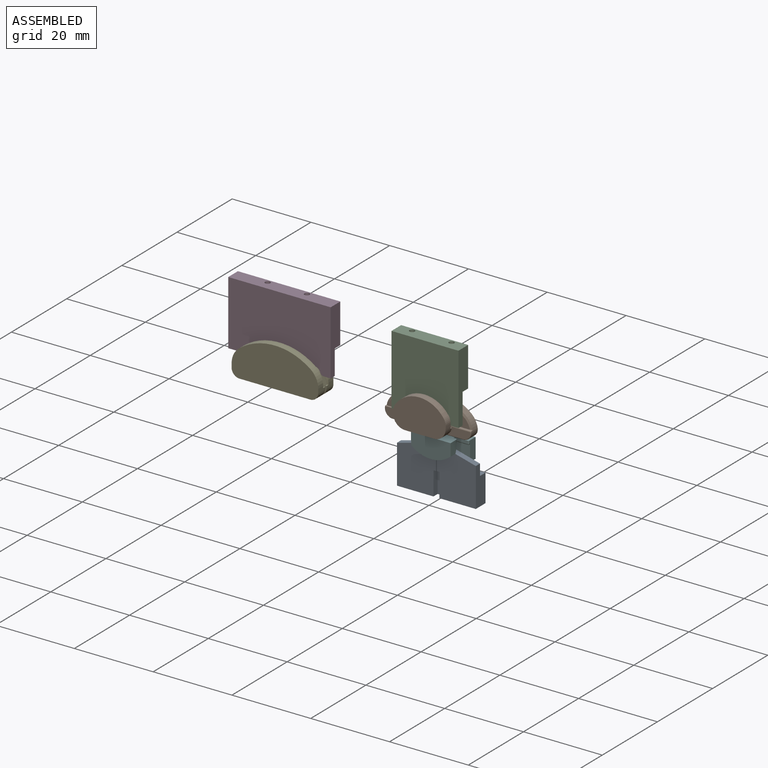
[diagram: assembled view]
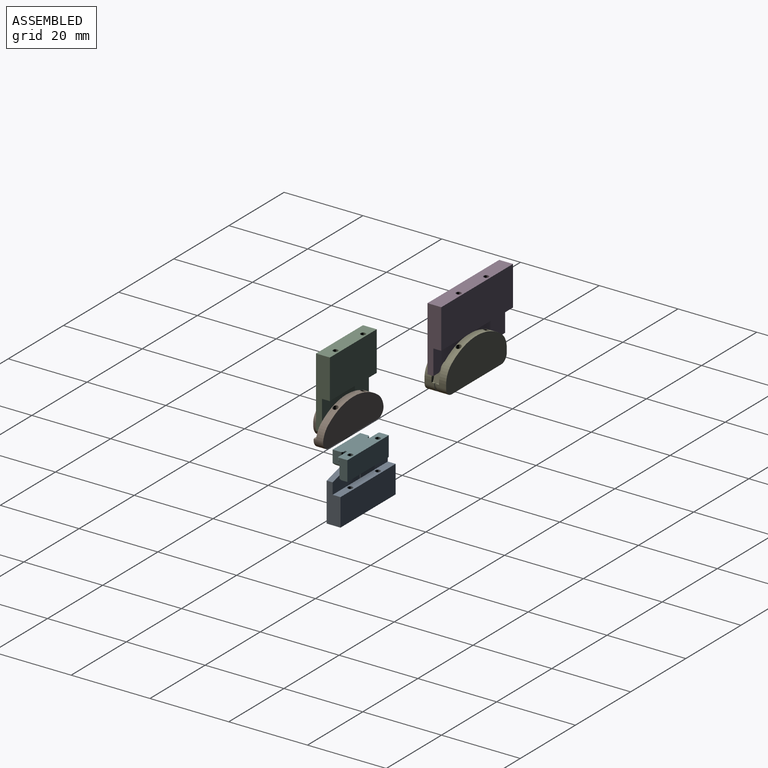
[diagram: assembled view, second angle]
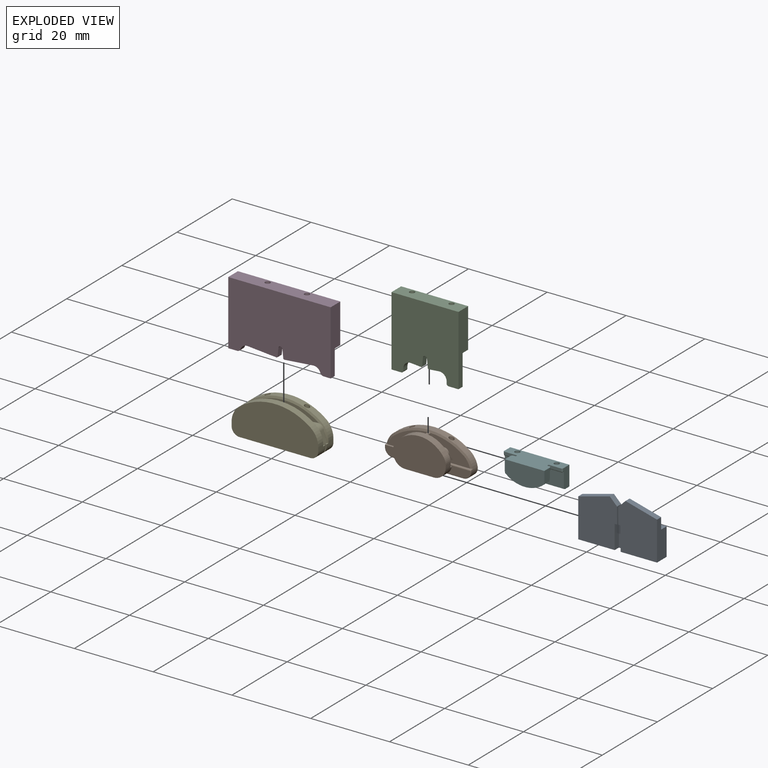
[diagram: exploded view]
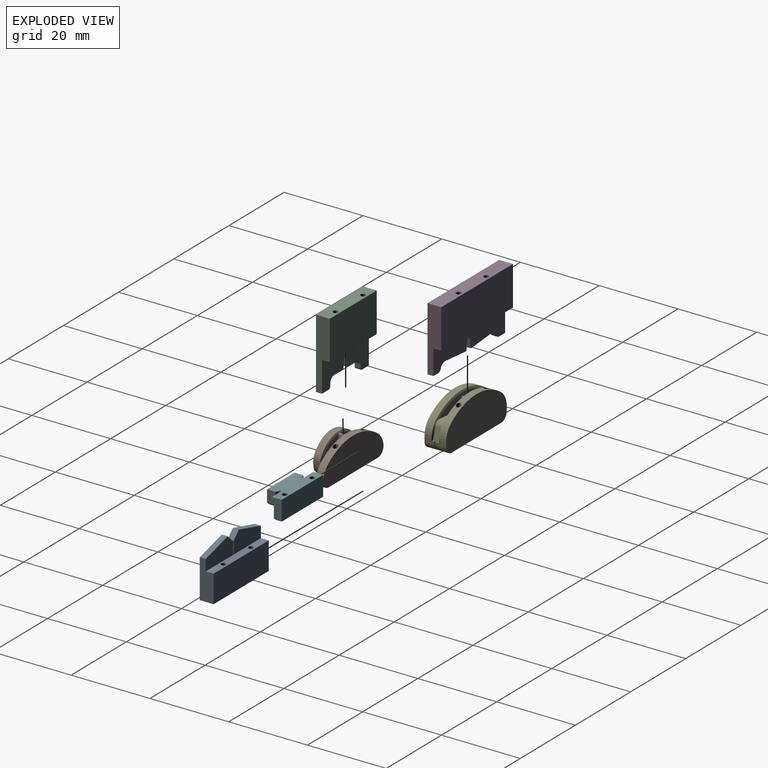
[diagram: exploded view, second angle]
ASSEMBLY  parts=6 mates=2
PART A: 22 faces, bbox 20x12x3.5 mm
  f0: plane 20x7mm, normal (0,0,-1), area 140mm2, adj f3,f4,f6,f19
  f1: plane 7x1.5mm, normal (0,0,1), area 9.3mm2, adj f5,f6,f8,f9,f10,f11,f12,f19
  f2: plane 12x9.85mm, normal (0,0,1), area 104.3mm2, adj f4,f5,f6,f10,f11,f13,f14
  f3: plane 9.86x3.5mm, normal (1,0,0), area 28.8mm2, adj f0,f6,f7,f16,f17,f19
  f4: plane 9.86x3.5mm, normal (-1,0,0), area 28.8mm2, adj f0,f2,f6,f14,f18,f19
  f5: plane 4.15x1.5mm, normal (1,0,0), area 6.2mm2, adj f1,f2,f10,f13,f18
  f6: plane 20x3.5mm, normal (0,-1,0), area 65.1mm2, adj f0,f1,f2,f3,f4,f7,f11,f12
  f7: plane 12x9.85mm, normal (0,0,1), area 104.3mm2, adj f3,f6,f8,f9,f12,f15,f16
  f8: plane 4.15x1.5mm, normal (-1,0,0), area 6.2mm2, adj f1,f7,f9,f15,f17
  f9: plane 1.5x0.6mm, normal (0,-1,0), area 0.9mm2, adj f1,f7,f8,f12
  f10: plane 1.5x0.6mm, normal (0,-1,0), area 0.9mm2, adj f1,f2,f5,f11
  f11: plane 6x1.5mm, normal (1,0,0), area 9mm2, adj f1,f2,f6,f10
  f12: plane 6x1.5mm, normal (-1,0,0), area 9mm2, adj f1,f6,f7,f9
  f13: plane 1.85x1.85mm, normal (0.71,0.71,0), area 3.9mm2, adj f2,f5,f14,f18
  f14: plane 8x2.14mm, normal (-0.26,0.97,0), area 12.4mm2, adj f2,f4,f13,f18
  f15: plane 1.85x1.85mm, normal (-0.71,0.71,0), area 3.9mm2, adj f7,f8,f16,f17
  f16: plane 8x2.14mm, normal (0.26,0.97,0), area 12.4mm2, adj f3,f7,f15,f17
  f17: plane 9.85x5mm, normal (0,0,-1), area 39mm2, adj f3,f8,f15,f16,f19
  f18: plane 9.85x5mm, normal (0,0,-1), area 39mm2, adj f4,f5,f13,f14,f19
  f19: plane 20x2mm, normal (0,1,0), area 37.3mm2, adj f0,f1,f3,f4,f17,f18,f20,f21
  f20: cylinder r=0.65mm len=7mm, axis (0,-1,0), area 28.6mm2, adj f6,f19
  f21: cylinder r=0.65mm len=7mm, axis (0,-1,0), area 28.6mm2, adj f6,f19
PART B: 78 faces, bbox 22.3x5.5x8.8 mm
  f0: plane 3.61x2mm, normal (0,1,0), area 3.2mm2, adj f11,f33,f74,f75
  f1: plane 5.87x5.49mm, normal (0,1,0), area 11mm2, adj f6,f10,f16,f17,f18,f19,f20,f21
  f2: plane 5.87x5.49mm, normal (0,1,0), area 11mm2, adj f11,f14,f15,f16,f22,f23,f24,f32
  f3: plane 13.33x8.5mm, normal (0,-1,0), area 93.8mm2, adj f4,f52,f53,f54,f55,f56,f57,f58
  f4: plane 7.33x2.32mm, normal (0,0,-1), area 17mm2, adj f3,f56,f57,f70,f71,f72,f73,f74
  f5: plane 3.64x2.1mm, normal (0,1,0), area 3.4mm2, adj f10,f66,f69,f70
  f6: plane 1.44x0.41mm, normal (0,0,1), area 0.4mm2, adj f1,f10,f62,f66,f67
  f7: plane 8.02x2.3mm, normal (0,-1,0), area 14.5mm2, adj f10,f27,f42,f43,f44
  f8: plane 10.1x5.5mm, normal (0,-1,0), area 26.3mm2, adj f11,f14,f15,f16,f22,f23,f24,f26
  f9: plane 5.05x0.5mm, normal (0,0,-1), area 2.5mm2, adj f10,f11,f46,f72
  f10: cylinder r=4mm len=4.42mm, axis (0,1,0), area 4.9mm2, adj f1,f5,f6,f7,f9,f12,f21,f27
  f11: cylinder r=4mm len=4.42mm, axis (0,1,0), area 4.9mm2, adj f0,f2,f8,f9,f22,f25,f26,f32
  f12: plane 10.1x5.5mm, normal (0,-1,0), area 26.3mm2, adj f10,f16,f17,f18,f19,f20,f21,f27
  f13: plane 21.92x8.5mm, normal (0,1,0), area 151.1mm2, adj f28,f29,f30,f31,f40,f41
  f14: cylinder r=0.5mm len=1.5mm, axis (0,1,0), area 1.2mm2, adj f2,f8,f15,f24
  f15: plane 1.94x1.5mm, normal (1,0,0.04), area 2.9mm2, adj f2,f8,f14,f16
  f16: cylinder r=0.35mm len=1.56mm, axis (0,1,0), area 1.6mm2, adj f1,f2,f8,f12,f15,f17,f36,f59
  f17: plane 1.94x1.5mm, normal (-1,0,0.04), area 2.9mm2, adj f1,f12,f16,f18
  f18: cylinder r=0.5mm len=1.5mm, axis (0,1,0), area 1.2mm2, adj f1,f12,f17,f19
  f19: plane 2.76x1.5mm, normal (0.09,0,1), area 4.2mm2, adj f1,f12,f18,f20
  f20: cylinder r=1.3mm len=1.5mm, axis (0,1,0), area 2.9mm2, adj f1,f12,f19,f21
  f21: plane 1.5x0.02mm, normal (-0.99,0,0.16), area 0mm2, adj f1,f10,f12,f20
  f22: plane 1.5x0.02mm, normal (0.99,0,0.16), area 0mm2, adj f2,f8,f11,f23
  f23: cylinder r=1.3mm len=1.5mm, axis (0,1,0), area 2.9mm2, adj f2,f8,f22,f24
  f24: plane 2.76x1.5mm, normal (-0.09,0,1), area 4.2mm2, adj f2,f8,f14,f23
  f25: plane 8.02x2mm, normal (0,-1,0), area 12.7mm2, adj f11,f34,f48,f49
  f26: plane 5.8x0.34mm, normal (0,0,1), area 1.2mm2, adj f8,f11,f34,f35,f51
  f27: plane 5.98x0.72mm, normal (0,0,1), area 3mm2, adj f7,f10,f12,f31,f37,f42
  f28: plane 17.92x2.32mm, normal (0,0,-1), area 38.6mm2, adj f13,f38,f39,f40,f41,f44,f45,f46
  f29: cylinder r=15mm len=18mm, axis (0,-1,0), area 31.9mm2, adj f13,f30,f31,f36,f38,f39
  f30: cylinder r=5mm len=3.17mm, axis (0,-1,0), area 6.8mm2, adj f13,f29,f35,f40
  f31: cylinder r=5mm len=3.17mm, axis (0,-1,0), area 6.9mm2, adj f13,f27,f29,f37,f41,f42
  f32: plane 1.44x0.31mm, normal (0,0,1), area 0.3mm2, adj f2,f11,f33,f65,f77
  f33: cylinder r=0.3mm len=1.56mm, axis (1,0,0), area 0.7mm2, adj f0,f11,f32,f76
  f34: cylinder r=0.3mm len=5.93mm, axis (-1,0,0), area 2.8mm2, adj f11,f25,f26,f50
  f35: cone r=4.5mm half-angle=68.2deg, axis (0,1,0), area 1.8mm2, adj f8,f26,f30,f36,f51
  f36: cone r=15mm half-angle=68.2deg, axis (0,1,0), area 10.2mm2, adj f8,f12,f16,f29,f35,f37
  f37: cone r=4.5mm half-angle=68.2deg, axis (0,1,0), area 1.8mm2, adj f12,f27,f31,f36
  f38: cylinder r=0.65mm len=7.4mm, axis (0,0,-1), area 30.2mm2, adj f28,f29
  f39: cylinder r=0.65mm len=7.86mm, axis (0,0,-1), area 32.1mm2, adj f28,f29
  f40: cylinder r=2mm len=2.33mm, axis (0,-1,0), area 8mm2, adj f13,f28,f30,f49,f50,f51
  f41: cylinder r=2mm len=2.33mm, axis (0,-1,0), area 8mm2, adj f13,f28,f31,f43
  f42: torus R=4.8mm, axis (0,1,0), area 0.1mm2, adj f7,f27,f31,f43
  f43: torus R=1.8mm, axis (0,1,0), area 1.1mm2, adj f7,f41,f42,f44
  f44: cylinder r=0.2mm len=6.22mm, axis (1,0,0), area 2mm2, adj f7,f28,f43,f45
  f45: bspline ~0.46x0.22mm, area 0.1mm2, adj f10,f28,f44,f46
  f46: cylinder r=0.2mm len=5.05mm, axis (1,0,0), area 1.2mm2, adj f9,f28,f45,f47
  f47: bspline ~0.35x0.21mm, area 0.1mm2, adj f11,f28,f46,f48
  f48: cylinder r=0.2mm len=6.22mm, axis (1,0,0), area 2mm2, adj f25,f28,f47,f49
  f49: torus R=1.8mm, axis (0,1,0), area 1mm2, adj f25,f40,f48,f50
  f50: bspline ~0.37x0.32mm, area 0.1mm2, adj f34,f40,f49,f51
  f51: cylinder r=0.2mm len=0.4mm, axis (0,-1,0), area 0.1mm2, adj f26,f35,f40,f50
  f52: plane 1.8x0.61mm, normal (-1,0,0), area 1.1mm2, adj f3,f57,f58,f61
  f53: plane 1.8x0.61mm, normal (1,0,0), area 1.1mm2, adj f3,f55,f56,f64
  f54: cylinder r=7.5mm len=12.22mm, axis (0,-1,0), area 25.7mm2, adj f3,f55,f58,f59
  f55: cylinder r=3mm len=1.8mm, axis (0,-1,0), area 3.3mm2, adj f3,f53,f54,f63
  f56: cylinder r=3mm len=3mm, axis (0,-1,0), area 10.5mm2, adj f3,f4,f53,f65,f75,f76,f77
  f57: cylinder r=3mm len=3mm, axis (0,1,0), area 10.5mm2, adj f3,f4,f52,f62,f67,f69
  f58: cylinder r=3mm len=1.8mm, axis (0,-1,0), area 3.3mm2, adj f3,f52,f54,f60
  f59: cone r=7.5mm half-angle=68.2deg, axis (0,-1,0), area 7.4mm2, adj f1,f2,f16,f54,f60,f63
  f60: cone r=2.5mm half-angle=68.2deg, axis (0,-1,0), area 0.9mm2, adj f1,f58,f59,f61
  f61: plane 0.61x0.5mm, normal (-0.37,0.93,0), area 0.3mm2, adj f1,f52,f60,f62
  f62: cone r=2.5mm half-angle=68.2deg, axis (0,-1,0), area 0.3mm2, adj f1,f6,f57,f61,f67
  f63: cone r=2.5mm half-angle=68.2deg, axis (0,-1,0), area 0.9mm2, adj f2,f55,f59,f64
  f64: plane 0.61x0.5mm, normal (0.37,0.93,0), area 0.3mm2, adj f2,f53,f63,f65
  f65: cone r=2.5mm half-angle=68.2deg, axis (0,-1,0), area 0.3mm2, adj f2,f32,f56,f64,f77
  f66: cylinder r=0.2mm len=1.52mm, axis (1,0,0), area 0.5mm2, adj f5,f6,f10,f68
  f67: cylinder r=0.2mm len=0.5mm, axis (0,1,0), area 0.2mm2, adj f6,f57,f62,f68
  f68: sphere r=0.2mm, area 0.1mm2, adj f66,f67,f69
  f69: torus R=2.8mm, axis (0,-1,0), area 1.2mm2, adj f5,f57,f68,f70
  f70: cylinder r=0.2mm len=0.93mm, axis (-1,0,0), area 0.3mm2, adj f4,f5,f69,f71
  f71: bspline ~0.35x0.21mm, area 0.1mm2, adj f4,f10,f70,f72
  f72: cylinder r=0.2mm len=5.05mm, axis (-1,0,0), area 1.2mm2, adj f4,f9,f71,f73
  f73: bspline ~0.46x0.22mm, area 0.1mm2, adj f4,f11,f72,f74
  f74: cylinder r=0.2mm len=0.93mm, axis (-1,0,0), area 0.3mm2, adj f0,f4,f73,f75
  f75: torus R=2.8mm, axis (0,-1,0), area 1.2mm2, adj f0,f56,f74,f76
  f76: bspline ~0.39x0.37mm, area 0.1mm2, adj f33,f56,f75,f77
  f77: cylinder r=0.2mm len=0.4mm, axis (0,-1,0), area 0.1mm2, adj f32,f56,f65,f76
PART C: 24 faces, bbox 17x3.5x17.7 mm
  f0: plane 17x3.5mm, normal (0,0,1), area 56.8mm2, adj f1,f17,f18,f21,f22,f23
  f1: plane 17.74x3.5mm, normal (-1,0,0), area 46.6mm2, adj f0,f2,f18,f19,f20,f21
  f2: plane 2.5x1.5mm, normal (0,0,-1), area 3.8mm2, adj f1,f3,f18,f19
  f3: cylinder r=0.5mm len=1.5mm, axis (0,1,0), area 1.2mm2, adj f2,f4,f18,f19
  f4: plane 1.5x0.5mm, normal (1,0,0), area 0.8mm2, adj f3,f5,f18,f19
  f5: cylinder r=1.8mm len=1.96mm, axis (0,1,0), area 4.5mm2, adj f4,f6,f18,f19
  f6: plane 2.55x1.5mm, normal (-0.09,0,-1), area 3.8mm2, adj f5,f7,f18,f19
  f7: cylinder r=0.25mm len=1.5mm, axis (0,1,0), area 0.6mm2, adj f6,f8,f18,f19
  f8: plane 2.11x1.5mm, normal (0.99,0,-0.11), area 3.2mm2, adj f7,f9,f18,f19
  f9: cylinder r=0.5mm len=1.5mm, axis (0,1,0), area 2.2mm2, adj f8,f10,f18,f19
  f10: plane 2.11x1.5mm, normal (-0.99,0,-0.11), area 3.2mm2, adj f9,f11,f18,f19
  f11: cylinder r=0.25mm len=1.5mm, axis (0,1,0), area 0.6mm2, adj f10,f12,f18,f19
  f12: plane 2.55x1.5mm, normal (0.09,0,-1), area 3.8mm2, adj f11,f13,f18,f19
  f13: cylinder r=1.8mm len=1.96mm, axis (0,1,0), area 4.5mm2, adj f12,f14,f18,f19
  f14: plane 1.5x0.5mm, normal (-1,0,0), area 0.8mm2, adj f13,f15,f18,f19
  f15: cylinder r=0.5mm len=1.5mm, axis (0,1,0), area 1.2mm2, adj f14,f16,f18,f19
  f16: plane 2.5x1.5mm, normal (0,0,-1), area 3.8mm2, adj f15,f17,f18,f19
  f17: plane 17.74x3.5mm, normal (1,0,0), area 46.6mm2, adj f0,f16,f18,f19,f20,f21
  f18: plane 17.74x17mm, normal (0,-1,0), area 269.9mm2, adj f0,f1,f2,f3,f4,f5,f6,f7
  f19: plane 17x7.74mm, normal (0,1,0), area 99.9mm2, adj f1,f2,f3,f4,f5,f6,f7,f8
  f20: plane 17x2mm, normal (0,0,-1), area 31.3mm2, adj f1,f17,f19,f21,f22,f23
  f21: plane 17x10mm, normal (0,1,0), area 170mm2, adj f0,f1,f17,f20
  f22: cylinder r=0.65mm len=10mm, axis (0,0,1), area 40.8mm2, adj f0,f20
  f23: cylinder r=0.65mm len=10mm, axis (0,0,1), area 40.8mm2, adj f0,f20
PART D: 22 faces, bbox 26x3.5x16.3 mm
  f0: plane 26x16.33mm, normal (0,-1,0), area 391.6mm2, adj f1,f2,f3,f4,f5,f6,f7,f8
  f1: plane 26x3.5mm, normal (0,0,1), area 88.3mm2, adj f0,f2,f16,f17,f18,f21
  f2: plane 16.33x3.5mm, normal (-1,0,0), area 44.5mm2, adj f0,f1,f3,f14,f15,f16
  f3: plane 2.28x1.5mm, normal (0,0,-1), area 3.4mm2, adj f0,f2,f14,f19
  f4: cylinder r=1.8mm len=1.86mm, axis (0,1,0), area 3.6mm2, adj f0,f5,f14,f19
  f5: plane 7.3x1.5mm, normal (-0.09,0,-1), area 11mm2, adj f0,f4,f6,f14
  f6: cylinder r=0.25mm len=1.5mm, axis (0,1,0), area 0.6mm2, adj f0,f5,f7,f14
  f7: plane 2.11x1.5mm, normal (0.99,0,-0.11), area 3.2mm2, adj f0,f6,f8,f14
  f8: cylinder r=0.5mm len=1.5mm, axis (0,1,0), area 2.2mm2, adj f0,f7,f9,f14
  f9: plane 2.11x1.5mm, normal (-0.99,0,-0.11), area 3.2mm2, adj f0,f8,f10,f14
  f10: cylinder r=0.25mm len=1.5mm, axis (0,1,0), area 0.6mm2, adj f0,f9,f11,f14
  f11: plane 7.3x1.5mm, normal (0.09,0,-1), area 11mm2, adj f0,f10,f12,f14
  f12: cylinder r=1.8mm len=1.86mm, axis (0,1,0), area 3.6mm2, adj f0,f11,f14,f20
  f13: plane 1.78x1.5mm, normal (0,0,-1), area 2.7mm2, adj f0,f14,f20,f21
  f14: plane 26x6.33mm, normal (0,1,0), area 131.6mm2, adj f2,f3,f4,f5,f6,f7,f8,f9
  f15: plane 26x2mm, normal (0,0,-1), area 49.3mm2, adj f2,f14,f16,f17,f18,f21
  f16: plane 26x10mm, normal (0,1,0), area 260mm2, adj f1,f2,f15,f21
  f17: cylinder r=0.65mm len=10mm, axis (0,0,1), area 40.8mm2, adj f1,f15
  f18: cylinder r=0.65mm len=10mm, axis (0,0,1), area 40.8mm2, adj f1,f15
  f19: cylinder r=0.87mm len=1.5mm, axis (0,1,0), area 1.6mm2, adj f0,f3,f4,f14
  f20: cylinder r=0.87mm len=1.5mm, axis (0,1,0), area 1.6mm2, adj f0,f12,f13,f14
  f21: plane 16.33x3.5mm, normal (1,0,0), area 44.5mm2, adj f0,f1,f13,f14,f15,f16
PART E: 56 faces, bbox 22x5.5x10 mm
  f0: plane 1.59x0.43mm, normal (0,-1,0), area 0.1mm2, adj f23,f48
  f1: plane 1.59x0.43mm, normal (0,-1,0), area 0.1mm2, adj f13,f46
  f2: plane 1.59x0.43mm, normal (0,1,0), area 0.1mm2, adj f13,f43
  f3: plane 1.59x0.43mm, normal (0,1,0), area 0.1mm2, adj f23,f41
  f4: plane 17.48x3.56mm, normal (0,1,0), area 38.3mm2, adj f14,f15,f16,f17,f18,f19,f20,f21
  f5: plane 17.5x0.5mm, normal (0,0,-1), area 8.8mm2, adj f6,f7,f26,f39
  f6: cylinder r=2mm len=2.52mm, axis (0,1,0), area 2mm2, adj f5,f23,f26,f28,f37,f39,f40,f49
  f7: cylinder r=2mm len=2.52mm, axis (0,1,0), area 2mm2, adj f5,f13,f26,f27,f38,f39,f44,f45
  f8: plane 2.5x1mm, normal (-1,0,0), area 2.1mm2, adj f10,f34,f37,f39,f40,f54
  f9: plane 2.5x1mm, normal (1,0,0), area 2.2mm2, adj f10,f33,f38,f39,f44,f55
  f10: plane 22x10mm, normal (0,-1,0), area 184.3mm2, adj f8,f9,f30,f32,f33,f34,f54,f55
  f11: plane 17.48x3.56mm, normal (0,-1,0), area 38.3mm2, adj f14,f15,f16,f17,f18,f19,f20,f21
  f12: plane 22x10mm, normal (0,1,0), area 184.3mm2, adj f24,f25,f29,f31,f35,f36,f52,f53
  f13: plane 2.89x1.67mm, normal (0.97,0,0.26), area 4.5mm2, adj f1,f2,f7,f14,f43,f44,f45,f46
  f14: cylinder r=1.5mm len=1.61mm, axis (0,1,0), area 3.2mm2, adj f4,f11,f13,f15,f43,f46
  f15: plane 7.36x1.5mm, normal (-0.09,0,1), area 11.1mm2, adj f4,f11,f14,f16
  f16: cylinder r=0.5mm len=1.5mm, axis (0,1,0), area 1.2mm2, adj f4,f11,f15,f17
  f17: plane 1.94x1.5mm, normal (1,0,0.04), area 2.9mm2, adj f4,f11,f16,f18
  f18: cylinder r=0.35mm len=1.5mm, axis (0,1,0), area 1.6mm2, adj f4,f11,f17,f19
  f19: plane 1.94x1.5mm, normal (-1,0,0.04), area 2.9mm2, adj f4,f11,f18,f20
  f20: cylinder r=0.5mm len=1.5mm, axis (0,1,0), area 1.2mm2, adj f4,f11,f19,f21
  f21: plane 7.36x1.5mm, normal (0.09,0,1), area 11.1mm2, adj f4,f11,f20,f22
  f22: cylinder r=1.5mm len=1.61mm, axis (0,1,0), area 3.2mm2, adj f4,f11,f21,f23,f41,f48
  f23: plane 2.89x1.67mm, normal (-0.97,0,0.26), area 4.5mm2, adj f0,f3,f6,f22,f40,f41,f48,f49
  f24: plane 2.5x1mm, normal (-1,0,0), area 2.1mm2, adj f12,f26,f28,f36,f49,f53
  f25: plane 2.5x1mm, normal (1,0,0), area 2.1mm2, adj f12,f26,f27,f35,f45,f52
  f26: plane 22x2.5mm, normal (0,-1,0), area 3.4mm2, adj f5,f6,f7,f24,f25,f27,f28,f29
  f27: plane 0.7x0.29mm, normal (0,0,1), area 0.2mm2, adj f7,f25,f26,f45
  f28: plane 0.7x0.29mm, normal (0,0,1), area 0.2mm2, adj f6,f24,f26,f49
  f29: plane 18x2.5mm, normal (0,0,-1), area 42.3mm2, adj f12,f26,f50,f51,f52,f53
  f30: plane 18x2.5mm, normal (0,0,-1), area 45mm2, adj f10,f39,f54,f55
  f31: cylinder r=15mm len=18mm, axis (0,-1,0), area 31.9mm2, adj f12,f35,f36,f47,f50,f51
  f32: cylinder r=15mm len=18mm, axis (0,-1,0), area 34.7mm2, adj f10,f33,f34,f42
  f33: cylinder r=5mm len=4mm, axis (0,-1,0), area 8.3mm2, adj f9,f10,f32,f43
  f34: cylinder r=5mm len=4mm, axis (0,-1,0), area 8.3mm2, adj f8,f10,f32,f41
  f35: cylinder r=5mm len=4mm, axis (0,-1,0), area 8.3mm2, adj f12,f25,f31,f46
  f36: cylinder r=5mm len=4mm, axis (0,-1,0), area 8.3mm2, adj f12,f24,f31,f48
  f37: plane 0.7x0.29mm, normal (0,0,1), area 0.2mm2, adj f6,f8,f39,f40
  f38: plane 0.7x0.29mm, normal (0,0,1), area 0.2mm2, adj f7,f9,f39,f44
  f39: plane 22x2.5mm, normal (0,1,0), area 3.4mm2, adj f5,f6,f7,f8,f9,f30,f37,f38
  f40: plane 0.5x0.42mm, normal (-0.37,0.93,0), area 0.2mm2, adj f6,f8,f23,f37,f41
  f41: cone r=4.5mm half-angle=68.2deg, axis (0,-1,0), area 2mm2, adj f3,f4,f22,f23,f34,f40,f42
  f42: cone r=15mm half-angle=68.2deg, axis (0,-1,0), area 10.2mm2, adj f4,f32,f41,f43
  f43: cone r=4.5mm half-angle=68.2deg, axis (0,-1,0), area 2mm2, adj f2,f4,f13,f14,f33,f42,f44
  f44: plane 0.5x0.42mm, normal (0.37,0.93,0), area 0.2mm2, adj f7,f9,f13,f38,f43
  f45: plane 0.5x0.42mm, normal (0.37,-0.93,0), area 0.2mm2, adj f7,f13,f25,f27,f46
  f46: cone r=4.5mm half-angle=68.2deg, axis (0,1,0), area 2mm2, adj f1,f11,f13,f14,f35,f45,f47
  f47: cone r=15mm half-angle=68.2deg, axis (0,1,0), area 10.2mm2, adj f11,f31,f46,f48
  f48: cone r=4.5mm half-angle=68.2deg, axis (0,1,0), area 2mm2, adj f0,f11,f22,f23,f36,f47,f49
  f49: plane 0.5x0.42mm, normal (-0.37,-0.93,0), area 0.2mm2, adj f6,f23,f24,f28,f48
  f50: cylinder r=0.65mm len=9.36mm, axis (0,0,-1), area 37.3mm2, adj f29,f31
  f51: cylinder r=0.65mm len=9.36mm, axis (0,0,-1), area 37.3mm2, adj f29,f31
  f52: cylinder r=2mm len=2.5mm, axis (0,1,0), area 7.9mm2, adj f12,f25,f26,f29
  f53: cylinder r=2mm len=2.5mm, axis (0,-1,0), area 7.9mm2, adj f12,f24,f26,f29
  f54: cylinder r=2mm len=2.5mm, axis (0,1,0), area 7.9mm2, adj f8,f10,f30,f39
  f55: cylinder r=2mm len=2.5mm, axis (0,-1,0), area 7.9mm2, adj f9,f10,f30,f39
PART F: 50 faces, bbox 15x5x5.5 mm
  f0: plane 5x4mm, normal (0,0,-1), area 6.6mm2, adj f7,f8,f9,f10,f23,f27,f29,f47
  f1: plane 5x4mm, normal (0,0,-1), area 6.6mm2, adj f4,f11,f12,f13,f14,f26,f29,f44
  f2: plane 15x5.5mm, normal (0,1,0), area 63.7mm2, adj f3,f5,f10,f11,f15,f17,f18,f20
  f3: plane 10x5mm, normal (0,0,1), area 44mm2, adj f2,f25,f26,f27,f48,f49
  f4: plane 0.5x0.2mm, normal (0,-1,0), area 0.1mm2, adj f1,f11,f38,f44
  f5: plane 0.7x0.5mm, normal (0,0,-1), area 0.3mm2, adj f2,f11,f38,f42
  f6: plane 15x4.1mm, normal (0,0,1), area 41.7mm2, adj f7,f8,f9,f10,f11,f12,f13,f14
  f7: plane 2x2mm, normal (0.71,-0.71,0), area 4.2mm2, adj f0,f6,f8,f14
  f8: plane 1.5x0.11mm, normal (-0.26,-0.97,0), area 0.2mm2, adj f0,f6,f7,f9
  f9: cylinder r=1.5mm len=1.89mm, axis (0,0,-1), area 4.1mm2, adj f0,f6,f8,f10
  f10: plane 1.5x1.08mm, normal (1,0,0), area 0.7mm2, adj f0,f2,f6,f9,f21,f22,f23,f24
  f11: plane 1.5x1.08mm, normal (-1,0,0), area 0.7mm2, adj f1,f2,f4,f5,f6,f12,f19,f20
  f12: cylinder r=1.5mm len=1.89mm, axis (0,0,-1), area 4.1mm2, adj f1,f6,f11,f13
  f13: plane 1.5x0.11mm, normal (0.26,-0.97,0), area 0.2mm2, adj f1,f6,f12,f14
  f14: plane 2x2mm, normal (-0.71,-0.71,0), area 4.2mm2, adj f1,f6,f7,f13
  f15: plane 5x2.2mm, normal (1,0,0), area 10.1mm2, adj f2,f6,f16,f18,f28,f30,f33
  f16: plane 15x1.5mm, normal (0,-1,0), area 20mm2, adj f15,f17,f18,f28,f40,f41
  f17: plane 5x2.2mm, normal (-1,0,0), area 10.1mm2, adj f2,f6,f16,f18,f28,f35,f37
  f18: plane 15x5mm, normal (0,0,-1), area 75mm2, adj f2,f15,f16,f17
  f19: plane 3.2x0.2mm, normal (0,-1,0), area 0.6mm2, adj f6,f11,f34,f35
  f20: plane 3.2x0.7mm, normal (0,0,1), area 2.2mm2, adj f2,f11,f34,f37
  f21: plane 3.2x0.2mm, normal (0,-1,0), area 0.6mm2, adj f6,f10,f30,f31
  f22: plane 3.2x0.7mm, normal (0,0,1), area 2.2mm2, adj f2,f10,f31,f33
  f23: plane 0.5x0.2mm, normal (0,-1,0), area 0.1mm2, adj f0,f10,f39,f47
  f24: plane 0.7x0.5mm, normal (0,0,-1), area 0.3mm2, adj f2,f10,f39,f45
  f25: cylinder r=7.5mm len=9.92mm, axis (0,0,1), area 19.5mm2, adj f3,f29,f48,f49
  f26: plane 3.11x2.02mm, normal (-1,0,0), area 6.1mm2, adj f1,f2,f3,f29,f42,f48
  f27: plane 3.11x2.02mm, normal (1,0,0), area 6.1mm2, adj f0,f2,f3,f29,f45,f49
  f28: plane 15x0.5mm, normal (0,-0.93,0.37), area 7.9mm2, adj f6,f15,f16,f17,f40,f41
  f29: cone r=7.5mm half-angle=68.2deg, axis (0,0,1), area 6mm2, adj f0,f1,f25,f26,f27,f48,f49
  f30: cylinder r=0.3mm len=0.3mm, axis (0,0,1), area 0.1mm2, adj f6,f15,f21,f32
  f31: cylinder r=0.3mm len=3.2mm, axis (-1,0,0), area 1.5mm2, adj f10,f21,f22,f32
  f32: sphere r=0.3mm, area 0.1mm2, adj f30,f31,f33
  f33: cylinder r=0.3mm len=0.7mm, axis (0,1,0), area 0.3mm2, adj f2,f15,f22,f32
  f34: cylinder r=0.3mm len=3.2mm, axis (-1,0,0), area 1.5mm2, adj f11,f19,f20,f36
  f35: cylinder r=0.3mm len=0.3mm, axis (0,0,-1), area 0.1mm2, adj f6,f17,f19,f36
  f36: sphere r=0.3mm, area 0.1mm2, adj f34,f35,f37
  f37: cylinder r=0.3mm len=0.7mm, axis (0,1,0), area 0.3mm2, adj f2,f17,f20,f36
  f38: cylinder r=0.3mm len=0.5mm, axis (1,0,0), area 0.2mm2, adj f4,f5,f11,f43
  f39: cylinder r=0.3mm len=0.5mm, axis (1,0,0), area 0.2mm2, adj f10,f23,f24,f46
  f40: cylinder r=0.65mm len=5mm, axis (0,1,0), area 20.4mm2, adj f2,f16,f28
  f41: cylinder r=0.65mm len=5mm, axis (0,1,0), area 20.4mm2, adj f2,f16,f28
  f42: cylinder r=0.5mm len=0.7mm, axis (0,1,0), area 0.5mm2, adj f2,f5,f26,f43
  f43: bspline ~0.6x0.5mm, area 0.2mm2, adj f38,f42,f44
  f44: cylinder r=0.5mm len=0.5mm, axis (0,0,-1), area 0.1mm2, adj f1,f4,f43
  f45: cylinder r=0.5mm len=0.7mm, axis (0,-1,0), area 0.5mm2, adj f2,f24,f27,f46
  f46: bspline ~0.6x0.5mm, area 0.2mm2, adj f39,f45,f47
  f47: cylinder r=0.5mm len=0.5mm, axis (0,0,1), area 0.1mm2, adj f0,f23,f46
  f48: cylinder r=0.5mm len=1.8mm, axis (0,0,-1), area 0.1mm2, adj f3,f25,f26,f29
  f49: cylinder r=0.5mm len=1.8mm, axis (0,0,-1), area 0.1mm2, adj f3,f25,f27,f29
PLACE A rot(axis=(1,0,0),90deg) t=(40.4,5.63,-13.22)mm
PLACE B t=(40.21,-0.25,-1.1)mm
PLACE C t=(40.21,-0.25,-7.88)mm
PLACE D t=(0.9,3.49,-8.73)mm
PLACE E t=(0.9,3.49,-1.14)mm
PLACE F rot(axis=(1,0,0),90deg) t=(40.39,3.64,-9.21)mm
MATE slider B.f39 <-> C.f22  axis (0,0,-1) through (45.21,0.75,5.31)mm
MATE slider E.f50 <-> D.f18  axis (0,0,-1) through (-4.1,4.49,5.27)mm
